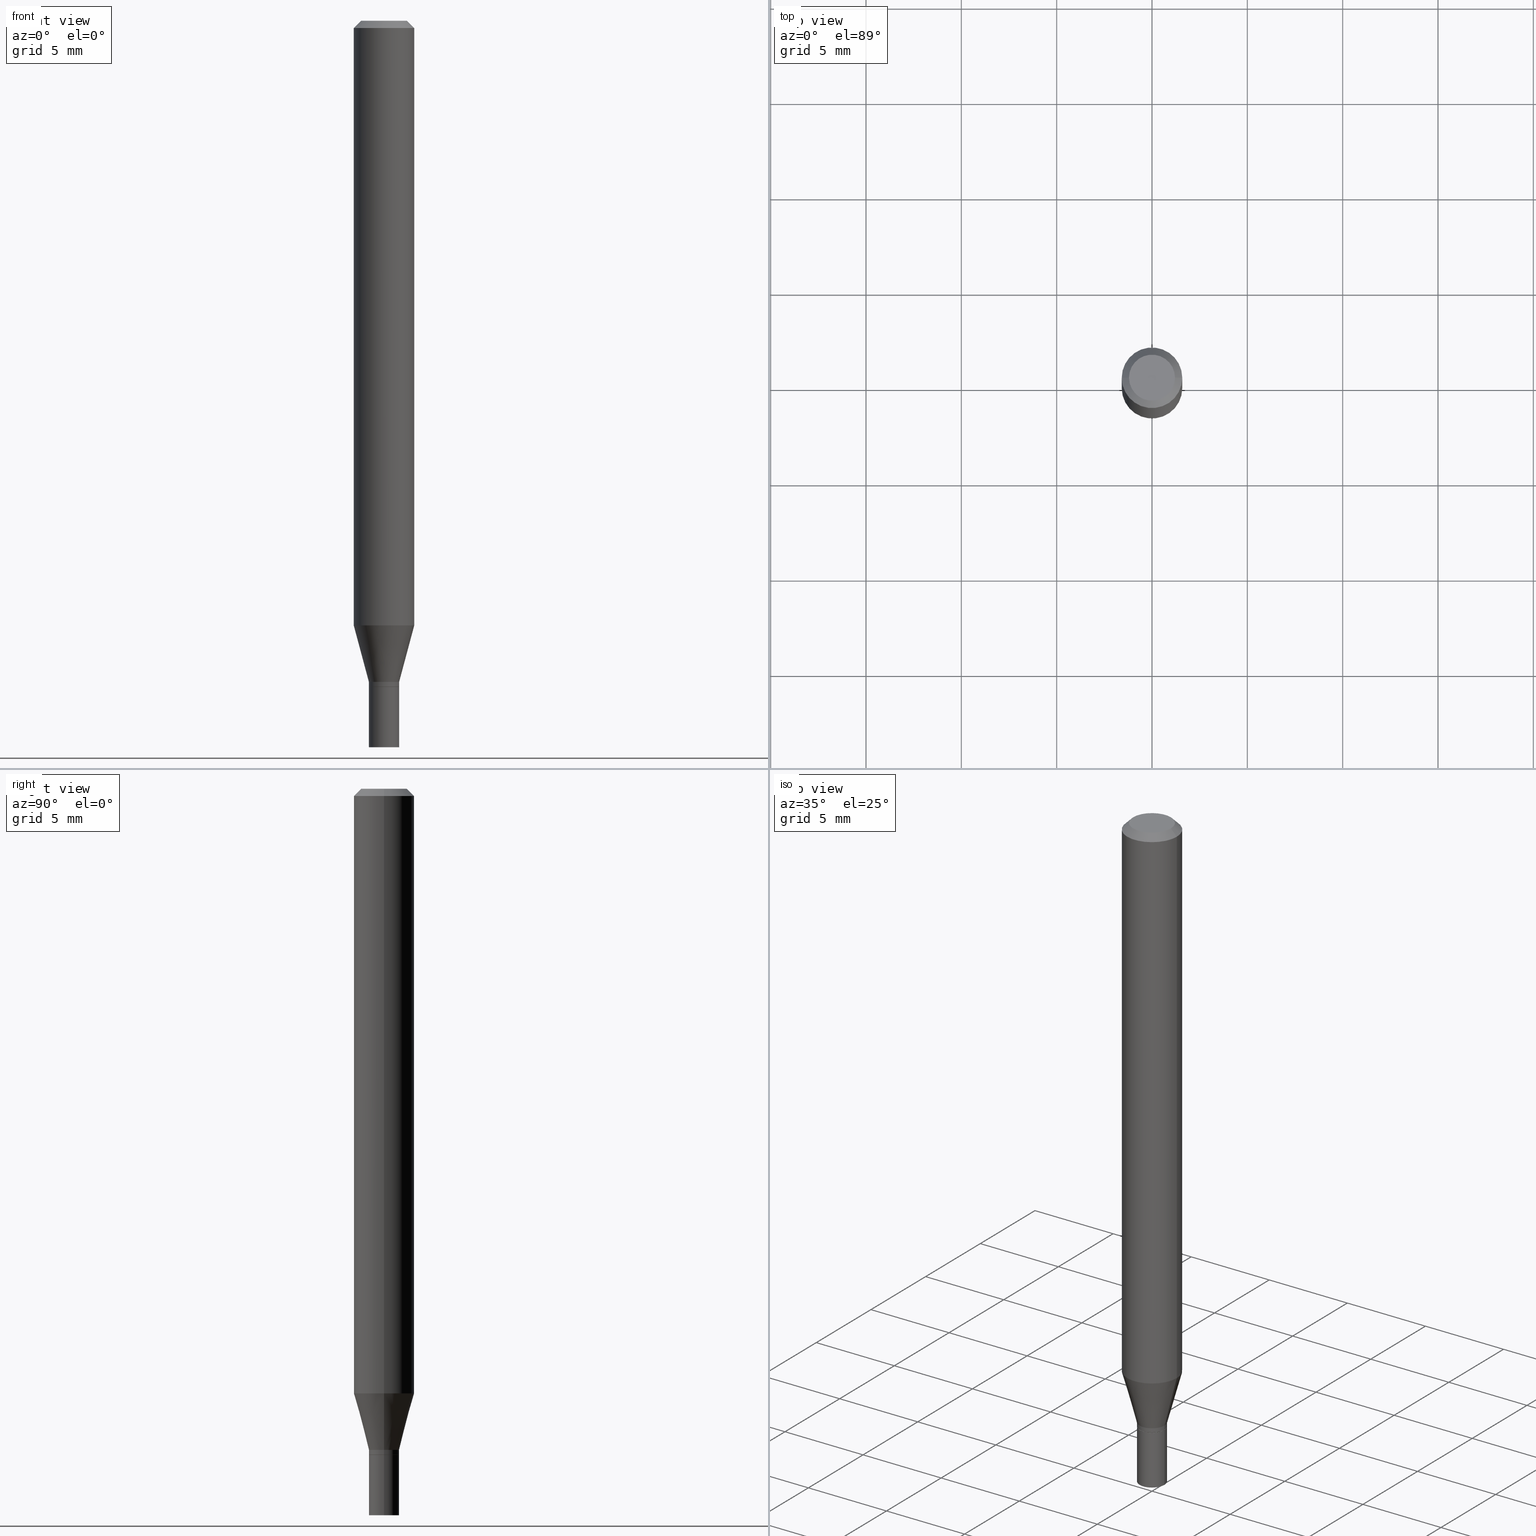
[diagram: canonical four-view strip — front | top / right | iso, engineering-drawing reading convention]
A machine part, canonical four-view strip (front | top / right | iso — engineering-drawing reading convention). The complete STEP part file that produces these views, byte-faithful:
ISO-10303-21;
HEADER;
FILE_DESCRIPTION (( 'STEP AP203' ),
    '1' );
FILE_NAME ('31303.STEP',
    '2024-03-13T16:30:00',
    ( '' ),
    ( '' ),
    'SwSTEP 2.0',
    'SolidWorks 2023',
    '' );
FILE_SCHEMA (( 'CONFIG_CONTROL_DESIGN' ));
ENDSEC;

DATA;
#1 = VECTOR ( 'NONE', #310, 39.37007874015748143 ) ;
#2 = VECTOR ( 'NONE', #418, 39.37007874015748143 ) ;
#3 = DIRECTION ( 'NONE',  ( 1.000000000000000000, -6.982962677686261189E-15, 0.000000000000000000 ) ) ;
#4 = ORIENTED_EDGE ( 'NONE', *, *, #189, .F. ) ;
#5 = CARTESIAN_POINT ( 'NONE',  ( -0.03125000000000000694, -4.796959819661991034E-15, -1.375000000000000000 ) ) ;
#6 = EDGE_LOOP ( 'NONE', ( #103, #231 ) ) ;
#7 = LINE ( 'NONE', #422, #416 ) ;
#8 = ORIENTED_EDGE ( 'NONE', *, *, #286, .F. ) ;
#9 = AXIS2_PLACEMENT_3D ( 'NONE', #161, #16, #341 ) ;
#10 = LINE ( 'NONE', #406, #307 ) ;
#11 = APPROVAL_ROLE ( '' ) ;
#12 = CARTESIAN_POINT ( 'NONE',  ( -0.03124999999999966693, -4.229205342785826785E-15, -1.364999999999999991 ) ) ;
#13 = DIRECTION ( 'NONE',  ( 1.000000000000000000, -6.982962677686275388E-15, 0.000000000000000000 ) ) ;
#14 = PERSON_AND_ORGANIZATION ( #39, #373 ) ;
#15 = ORIENTED_EDGE ( 'NONE', *, *, #102, .F. ) ;
#16 = DIRECTION ( 'NONE',  ( -2.445468806185136597E-29, 3.491481338843145583E-15, 1.000000000000000000 ) ) ;
#17 = ADVANCED_FACE ( 'NONE', ( #268 ), #450, .T. ) ;
#18 = DIRECTION ( 'NONE',  ( 1.000000000000000000, -6.982962677686267499E-15, 4.876176775795935793E-29 ) ) ;
#19 = DIRECTION ( 'NONE',  ( -2.445468806185136597E-29, 3.491481338843145583E-15, 1.000000000000000000 ) ) ;
#20 = ORIENTED_EDGE ( 'NONE', *, *, #183, .F. ) ;
#21 = CARTESIAN_POINT ( 'NONE',  ( 3.362519608504562260E-29, -4.800786840909324930E-15, -1.375000000000000000 ) ) ;
#22 =( CONVERSION_BASED_UNIT ( 'INCH', #306 ) LENGTH_UNIT ( ) NAMED_UNIT ( #182 ) );
#23 = EDGE_CURVE ( 'NONE', #151, #190, #66, .T. ) ;
#24 = CARTESIAN_POINT ( 'NONE',  ( 0.03124999999999966693, -4.984089611198587537E-15, -1.364999999999999991 ) ) ;
#25 = AXIS2_PLACEMENT_3D ( 'NONE', #304, #372, #55 ) ;
#26 = APPROVAL_PERSON_ORGANIZATION ( #113, #238, #354 ) ;
#27 = EDGE_CURVE ( 'NONE', #444, #396, #99, .T. ) ;
#28 = EDGE_CURVE ( 'NONE', #223, #143, #10, .T. ) ;
#29 = CARTESIAN_POINT ( 'NONE',  ( 5.895992206697910099E-45, -8.417914271318620386E-31, -2.410986470890828574E-16 ) ) ;
#30 = FACE_OUTER_BOUND ( 'NONE', #216, .T. ) ;
#31 = AXIS2_PLACEMENT_3D ( 'NONE', #165, #455, #205 ) ;
#32 = DIRECTION ( 'NONE',  ( -0.2588190451025215166, 5.211531920934551042E-15, 0.9659258262890679791 ) ) ;
#33 = CC_DESIGN_SECURITY_CLASSIFICATION ( #347, ( #293 ) ) ;
#34 = DIRECTION ( 'NONE',  ( 1.000000000000000000, -6.982962677686267499E-15, 4.876176775795935232E-29 ) ) ;
#35 = ORIENTED_EDGE ( 'NONE', *, *, #166, .F. ) ;
#36 = EDGE_CURVE ( 'NONE', #49, #143, #144, .T. ) ;
#37 = DIRECTION ( 'NONE',  ( -2.445468806185136597E-29, 3.491481338843145583E-15, 1.000000000000000000 ) ) ;
#38 = DIRECTION ( 'NONE',  ( -2.445468806185136597E-29, 3.491481338843145583E-15, 1.000000000000000000 ) ) ;
#39 = PERSON ( 'UNSPECIFIED', 'UNSPECIFIED', 'UNSPECIFIED', ('UNSPECIFIED'), ('UNSPECIFIED'), ('UNSPECIFIED') ) ;
#40 = ORIENTED_EDGE ( 'NONE', *, *, #220, .T. ) ;
#41 = CARTESIAN_POINT ( 'NONE',  ( 3.052858238161217332E-29, -4.358672472825852637E-15, -1.248373412263471760 ) ) ;
#42 = CIRCLE ( 'NONE', #133, 0.04749999999999999362 ) ;
#43 = ADVANCED_FACE ( 'NONE', ( #154 ), #92, .T. ) ;
#44 = ADVANCED_FACE ( 'NONE', ( #119 ), #409, .T. ) ;
#45 = ORIENTED_EDGE ( 'NONE', *, *, #162, .T. ) ;
#46 = EDGE_CURVE ( 'NONE', #148, #359, #420, .T. ) ;
#47 = DIRECTION ( 'NONE',  ( -2.445468806185136597E-29, 3.491481338843145583E-15, 1.000000000000000000 ) ) ;
#48 = COORDINATED_UNIVERSAL_TIME_OFFSET ( 5, 0, .BEHIND. ) ;
#49 = VERTEX_POINT ( 'NONE', #12 ) ;
#50 = CC_DESIGN_PERSON_AND_ORGANIZATION_ASSIGNMENT ( #215, #320, ( #293 ) ) ;
#51 = CARTESIAN_POINT ( 'NONE',  ( 3.338064920442711836E-29, -4.765872027520893280E-15, -1.364999999999999991 ) ) ;
#52 = VECTOR ( 'NONE', #345, 39.37007874015748143 ) ;
#53 = AXIS2_PLACEMENT_3D ( 'NONE', #355, #37, #464 ) ;
#54 = FACE_OUTER_BOUND ( 'NONE', #106, .T. ) ;
#55 = DIRECTION ( 'NONE',  ( 1.000000000000000000, -6.982962677686261189E-15, 0.000000000000000000 ) ) ;
#56 = DATE_AND_TIME ( #374, #208 ) ;
#57 = VERTEX_POINT ( 'NONE', #63 ) ;
#58 = LINE ( 'NONE', #264, #276 ) ;
#59 = CALENDAR_DATE ( 2024, 13, 3 ) ;
#60 = CARTESIAN_POINT ( 'NONE',  ( 3.362519608504562260E-29, -4.800786840909324930E-15, -1.375000000000000000 ) ) ;
#61 = DIRECTION ( 'NONE',  ( 2.438088387897960049E-29, -3.491481338843145188E-15, -1.000000000000000000 ) ) ;
#62 = VECTOR ( 'NONE', #313, 39.37007874015748143 ) ;
#63 = CARTESIAN_POINT ( 'NONE',  ( 0.06250000000000000000, -4.795107640181243517E-15, -1.248373412263471760 ) ) ;
#64 = PLANE ( 'NONE',  #391 ) ;
#65 = CARTESIAN_POINT ( 'NONE',  ( 3.668203209277705088E-31, -5.237222008264718399E-17, -0.01499999999999999944 ) ) ;
#66 = CIRCLE ( 'NONE', #122, 0.03075000000000000649 ) ;
#67 = CONICAL_SURFACE ( 'NONE', #176, 0.03124999999999966693, 0.2617993877991502405 ) ;
#68 = DIRECTION ( 'NONE',  ( 0.7071067811865656694, -2.468850131082446387E-15, 0.7071067811865294761 ) ) ;
#69 = CARTESIAN_POINT ( 'NONE',  ( 0.06250000000000000000, -4.364351673553916694E-16, 3.047610484872459871E-30 ) ) ;
#70 = DATE_AND_TIME ( #317, #80 ) ;
#71 = AXIS2_PLACEMENT_3D ( 'NONE', #241, #138, #423 ) ;
#72 = VECTOR ( 'NONE', #32, 39.37007874015748143 ) ;
#73 = APPROVAL_STATUS ( 'not_yet_approved' ) ;
#74 = ORIENTED_EDGE ( 'NONE', *, *, #36, .F. ) ;
#75 = DATE_TIME_ROLE ( 'creation_date' ) ;
#76 = ORIENTED_EDGE ( 'NONE', *, *, #234, .T. ) ;
#77 = DIRECTION ( 'NONE',  ( 1.000000000000000000, -6.982962677686270655E-15, 0.000000000000000000 ) ) ;
#78 = ORIENTED_EDGE ( 'NONE', *, *, #349, .F. ) ;
#79 = CONICAL_SURFACE ( 'NONE', #236, 0.06250000000000000000, 0.7853981633974563836 ) ;
#80 = LOCAL_TIME ( 12, 30, 0.000000000000000000, #403 ) ;
#81 = DIRECTION ( 'NONE',  ( -2.445468806185136877E-29, 3.491481338843145188E-15, 1.000000000000000000 ) ) ;
#82 = DIRECTION ( 'NONE',  ( -2.445468806185136597E-29, 3.491481338843145583E-15, 1.000000000000000000 ) ) ;
#83 = DIRECTION ( 'NONE',  ( -2.445468806185136597E-29, 3.491481338843145583E-15, 1.000000000000000000 ) ) ;
#84 = DIRECTION ( 'NONE',  ( -2.445468806185136597E-29, 3.491481338843145583E-15, 1.000000000000000000 ) ) ;
#85 = MECHANICAL_CONTEXT ( 'NONE', #125, 'mechanical' ) ;
#86 = UNCERTAINTY_MEASURE_WITH_UNIT (LENGTH_MEASURE( 1.000000000000000082E-05 ), #22, 'distance_accuracy_value', 'NONE');
#87 = AXIS2_PLACEMENT_3D ( 'NONE', #429, #344, #110 ) ;
#88 = EDGE_CURVE ( 'NONE', #143, #49, #263, .T. ) ;
#89 = AXIS2_PLACEMENT_3D ( 'NONE', #41, #179, #329 ) ;
#90 = CARTESIAN_POINT ( 'NONE',  ( -0.04749999999999999362, 3.578768372314206562E-16, -2.410986470890852239E-16 ) ) ;
#91 = ORIENTED_EDGE ( 'NONE', *, *, #88, .F. ) ;
#92 = CYLINDRICAL_SURFACE ( 'NONE', #433, 0.03124999999999979877 ) ;
#93 = EDGE_CURVE ( 'NONE', #57, #413, #383, .T. ) ;
#94 = DIRECTION ( 'NONE',  ( 1.000000000000000000, -6.982962677686275388E-15, 0.000000000000000000 ) ) ;
#95 = APPROVAL_ROLE ( '' ) ;
#96 = FACE_OUTER_BOUND ( 'NONE', #124, .T. ) ;
#97 =( LENGTH_UNIT ( ) NAMED_UNIT ( * ) SI_UNIT ( $, .METRE. ) );
#98 = DIRECTION ( 'NONE',  ( -2.445468806185136597E-29, 3.491481338843145583E-15, 1.000000000000000000 ) ) ;
#99 = CIRCLE ( 'NONE', #302, 0.03125000000000000694 ) ;
#100 = VECTOR ( 'NONE', #206, 39.37007874015748143 ) ;
#101 = DIRECTION ( 'NONE',  ( -0.7071067811865531239, 2.468850131082316225E-15, -0.7071067811865416886 ) ) ;
#102 = EDGE_CURVE ( 'NONE', #190, #283, #438, .T. ) ;
#103 = ORIENTED_EDGE ( 'NONE', *, *, #23, .F. ) ;
#104 = DIRECTION ( 'NONE',  ( 1.000000000000000000, -6.982962677686266711E-15, 0.000000000000000000 ) ) ;
#105 = DIRECTION ( 'NONE',  ( -2.445468806185136597E-29, 3.491481338843145583E-15, 1.000000000000000000 ) ) ;
#106 = EDGE_LOOP ( 'NONE', ( #120, #8, #337, #432 ) ) ;
#107 = CIRCLE ( 'NONE', #332, 0.04749999999999999362 ) ;
#108 = DIRECTION ( 'NONE',  ( 1.000000000000000000, -6.982962677686265922E-15, 4.876176775795935793E-29 ) ) ;
#109 = CARTESIAN_POINT ( 'NONE',  ( 3.362519608504562260E-29, -4.800786840909324930E-15, -1.375000000000000000 ) ) ;
#110 = DIRECTION ( 'NONE',  ( 1.000000000000000000, -6.982962677686274599E-15, 0.000000000000000000 ) ) ;
#111 = EDGE_LOOP ( 'NONE', ( #435, #76, #331, #214 ) ) ;
#112 = CARTESIAN_POINT ( 'NONE',  ( 3.362519608504562260E-29, -4.800786840909324930E-15, -1.375000000000000000 ) ) ;
#113 = PERSON_AND_ORGANIZATION ( #39, #373 ) ;
#114 = EDGE_LOOP ( 'NONE', ( #334, #174 ) ) ;
#115 = CIRCLE ( 'NONE', #410, 0.03075000000000000649 ) ;
#116 = CONICAL_SURFACE ( 'NONE', #146, 0.06250000000000000000, 0.7853981633974563836 ) ;
#117 = DIRECTION ( 'NONE',  ( -2.445468806185136597E-29, 3.491481338843145583E-15, 1.000000000000000000 ) ) ;
#118 = CARTESIAN_POINT ( 'NONE',  ( 0.000000000000000000, 0.000000000000000000, 0.000000000000000000 ) ) ;
#119 = FACE_OUTER_BOUND ( 'NONE', #111, .T. ) ;
#120 = ORIENTED_EDGE ( 'NONE', *, *, #442, .F. ) ;
#121 = CARTESIAN_POINT ( 'NONE',  ( 3.668203209277705088E-31, -5.237222008264718399E-17, -0.01499999999999999944 ) ) ;
#122 = AXIS2_PLACEMENT_3D ( 'NONE', #270, #297, #229 ) ;
#123 = ORIENTED_EDGE ( 'NONE', *, *, #183, .T. ) ;
#124 = EDGE_LOOP ( 'NONE', ( #15, #45, #40, #288 ) ) ;
#125 = APPLICATION_CONTEXT ( 'configuration controlled 3d designs of mechanical parts and assemblies' ) ;
#126 = APPROVAL ( #157, 'UNSPECIFIED' ) ;
#127 = CARTESIAN_POINT ( 'NONE',  ( 3.362519608504562260E-29, -4.800786840909324930E-15, -1.375000000000000000 ) ) ;
#128 = AXIS2_PLACEMENT_3D ( 'NONE', #408, #38, #3 ) ;
#129 = APPROVAL ( #424, 'UNSPECIFIED' ) ;
#130 = LINE ( 'NONE', #386, #2 ) ;
#131 = ADVANCED_FACE ( 'NONE', ( #96 ), #273, .T. ) ;
#132 = LINE ( 'NONE', #419, #457 ) ;
#133 = AXIS2_PLACEMENT_3D ( 'NONE', #29, #388, #456 ) ;
#134 = AXIS2_PLACEMENT_3D ( 'NONE', #112, #252, #407 ) ;
#135 = FACE_OUTER_BOUND ( 'NONE', #394, .T. ) ;
#136 = ADVANCED_FACE ( 'NONE', ( #305 ), #277, .T. ) ;
#137 = DIRECTION ( 'NONE',  ( -2.445468806185136597E-29, 3.491481338843145583E-15, 1.000000000000000000 ) ) ;
#138 = DIRECTION ( 'NONE',  ( 2.438088387897960049E-29, -3.491481338843145188E-15, -1.000000000000000000 ) ) ;
#139 = CARTESIAN_POINT ( 'NONE',  ( 0.03075000000000000649, -5.015512943248178546E-15, -1.375000000000000000 ) ) ;
#140 = EDGE_LOOP ( 'NONE', ( #404, #463 ) ) ;
#141 = CYLINDRICAL_SURFACE ( 'NONE', #265, 0.03125000000000000694 ) ;
#142 = CARTESIAN_POINT ( 'NONE',  ( 3.576687321579069994E-29, -5.368277968210015545E-15, -1.500000000000000222 ) ) ;
#143 = VERTEX_POINT ( 'NONE', #24 ) ;
#144 = CIRCLE ( 'NONE', #232, 0.03124999999999966693 ) ;
#145 = MANIFOLD_SOLID_BREP ( 'Body-Move/Copy2[1]', #346 ) ;
#146 = AXIS2_PLACEMENT_3D ( 'NONE', #371, #186, #333 ) ;
#147 = CC_DESIGN_PERSON_AND_ORGANIZATION_ASSIGNMENT ( #325, #431, ( #293 ) ) ;
#148 = VERTEX_POINT ( 'NONE', #454 ) ;
#149 = VERTEX_POINT ( 'NONE', #274 ) ;
#150 = DATE_AND_TIME ( #376, #163 ) ;
#151 = VERTEX_POINT ( 'NONE', #417 ) ;
#152 = AXIS2_PLACEMENT_3D ( 'NONE', #60, #117, #367 ) ;
#153 = CIRCLE ( 'NONE', #89, 0.06250000000000000000 ) ;
#154 = FACE_OUTER_BOUND ( 'NONE', #246, .T. ) ;
#155 = DIRECTION ( 'NONE',  ( -1.000000000000000000, 6.982962677686265922E-15, -4.876176775795935793E-29 ) ) ;
#156 = EDGE_LOOP ( 'NONE', ( #364, #123, #35, #377 ) ) ;
#157 = APPROVAL_STATUS ( 'not_yet_approved' ) ;
#158 = ORIENTED_EDGE ( 'NONE', *, *, #166, .T. ) ;
#159 = CC_DESIGN_APPROVAL ( #129, ( #347 ) ) ;
#160 = EDGE_LOOP ( 'NONE', ( #328, #452, #210, #321 ) ) ;
#161 = CARTESIAN_POINT ( 'NONE',  ( 3.338064920442711836E-29, -4.765872027520893280E-15, -1.364999999999999991 ) ) ;
#162 = EDGE_CURVE ( 'NONE', #190, #151, #115, .T. ) ;
#163 = LOCAL_TIME ( 12, 30, 0.000000000000000000, #48 ) ;
#164 = CARTESIAN_POINT ( 'NONE',  ( -0.03124999999999966693, -4.543827422595864339E-15, -1.364999999999999991 ) ) ;
#165 = CARTESIAN_POINT ( 'NONE',  ( 0.000000000000000000, 0.000000000000000000, 0.000000000000000000 ) ) ;
#166 = EDGE_CURVE ( 'NONE', #149, #437, #339, .T. ) ;
#167 = ADVANCED_FACE ( 'NONE', ( #453 ), #79, .T. ) ;
#168 = EDGE_CURVE ( 'NONE', #283, #49, #58, .T. ) ;
#169 = AXIS2_PLACEMENT_3D ( 'NONE', #121, #98, #235 ) ;
#170 = APPROVAL_PERSON_ORGANIZATION ( #281, #129, #11 ) ;
#171 = CYLINDRICAL_SURFACE ( 'NONE', #31, 0.06250000000000000000 ) ;
#172 = DIRECTION ( 'NONE',  ( 1.000000000000000000, -6.982962677686261189E-15, 0.000000000000000000 ) ) ;
#173 = ORIENTED_EDGE ( 'NONE', *, *, #36, .T. ) ;
#174 = ORIENTED_EDGE ( 'NONE', *, *, #46, .F. ) ;
#175 = VERTEX_POINT ( 'NONE', #90 ) ;
#176 = AXIS2_PLACEMENT_3D ( 'NONE', #314, #137, #279 ) ;
#177 = SECURITY_CLASSIFICATION_LEVEL ( 'unclassified' ) ;
#178 = EDGE_LOOP ( 'NONE', ( #227, #249, #255, #284 ) ) ;
#179 = DIRECTION ( 'NONE',  ( -2.445468806185136597E-29, 3.491481338843145583E-15, 1.000000000000000000 ) ) ;
#180 = DIRECTION ( 'NONE',  ( 1.000000000000000000, -6.982962677686278543E-15, 0.000000000000000000 ) ) ;
#181 = CARTESIAN_POINT ( 'NONE',  ( -0.03075000000000000649, -4.582294949663094520E-15, -1.375000000000000000 ) ) ;
#182 = DIMENSIONAL_EXPONENTS ( 1.000000000000000000, 0.000000000000000000, 0.000000000000000000, 0.000000000000000000, 0.000000000000000000, 0.000000000000000000, 0.000000000000000000 ) ;
#183 = EDGE_CURVE ( 'NONE', #413, #437, #378, .T. ) ;
#184 = DIRECTION ( 'NONE',  ( -2.445468806185136597E-29, 3.491481338843145583E-15, 1.000000000000000000 ) ) ;
#185 = AXIS2_PLACEMENT_3D ( 'NONE', #142, #434, #108 ) ;
#186 = DIRECTION ( 'NONE',  ( 2.445468806185136597E-29, -3.491481338843145583E-15, -1.000000000000000000 ) ) ;
#187 = ORIENTED_EDGE ( 'NONE', *, *, #299, .F. ) ;
#188 = ADVANCED_BREP_SHAPE_REPRESENTATION ( '31303', ( #145, #461, #224 ), #201 ) ;
#189 = EDGE_CURVE ( 'NONE', #323, #175, #42, .T. ) ;
#190 = VERTEX_POINT ( 'NONE', #384 ) ;
#191 = ADVANCED_FACE ( 'NONE', ( #312 ), #171, .T. ) ;
#192 = DIRECTION ( 'NONE',  ( -2.445468806185136597E-29, 3.491481338843145583E-15, 1.000000000000000000 ) ) ;
#193 = CARTESIAN_POINT ( 'NONE',  ( 0.000000000000000000, 0.000000000000000000, 0.000000000000000000 ) ) ;
#194 = DIRECTION ( 'NONE',  ( 1.000000000000000000, -6.982962677686274599E-15, 0.000000000000000000 ) ) ;
#195 = PERSON_AND_ORGANIZATION_ROLE ( 'design_owner' ) ;
#196 = CIRCLE ( 'NONE', #217, 0.06250000000000000000 ) ;
#197 = ORIENTED_EDGE ( 'NONE', *, *, #271, .T. ) ;
#198 = CARTESIAN_POINT ( 'NONE',  ( 2.182175836777295092E-16, 0.03124999999999520522, -1.375000000000000000 ) ) ;
#199 = VECTOR ( 'NONE', #237, 39.37007874015748143 ) ;
#200 = APPLICATION_CONTEXT ( 'configuration controlled 3d designs of mechanical parts and assemblies' ) ;
#201 =( GEOMETRIC_REPRESENTATION_CONTEXT ( 3 ) GLOBAL_UNCERTAINTY_ASSIGNED_CONTEXT ( ( #86 ) ) GLOBAL_UNIT_ASSIGNED_CONTEXT ( ( #22, #414, #300 ) ) REPRESENTATION_CONTEXT ( 'NONE', 'WORKASPACE' ) );
#202 = EDGE_CURVE ( 'NONE', #175, #437, #132, .T. ) ;
#203 = LINE ( 'NONE', #348, #62 ) ;
#204 = PRODUCT_DEFINITION_SHAPE ( 'NONE', 'NONE',  #458 ) ;
#205 = DIRECTION ( 'NONE',  ( 1.000000000000000000, -6.982962677686266711E-15, 4.876176775795935793E-29 ) ) ;
#206 = DIRECTION ( 'NONE',  ( -2.445468806185136877E-29, 3.491481338843145188E-15, 1.000000000000000000 ) ) ;
#207 = CARTESIAN_POINT ( 'NONE',  ( 0.03125000000000000694, -5.019004424587020764E-15, -1.375000000000000000 ) ) ;
#208 = LOCAL_TIME ( 12, 30, 0.000000000000000000, #225 ) ;
#209 = ORIENTED_EDGE ( 'NONE', *, *, #212, .T. ) ;
#210 = ORIENTED_EDGE ( 'NONE', *, *, #309, .T. ) ;
#211 = FACE_OUTER_BOUND ( 'NONE', #338, .T. ) ;
#212 = EDGE_CURVE ( 'NONE', #143, #57, #462, .T. ) ;
#213 = CARTESIAN_POINT ( 'NONE',  ( 5.895992206697910099E-45, -8.417914271318620386E-31, -2.410986470890828574E-16 ) ) ;
#214 = ORIENTED_EDGE ( 'NONE', *, *, #309, .F. ) ;
#215 = PERSON_AND_ORGANIZATION ( #39, #373 ) ;
#216 = EDGE_LOOP ( 'NONE', ( #301, #318, #451, #448 ) ) ;
#217 = AXIS2_PLACEMENT_3D ( 'NONE', #282, #426, #104 ) ;
#218 = DIRECTION ( 'NONE',  ( -2.445468806185136597E-29, 3.491481338843145583E-15, 1.000000000000000000 ) ) ;
#219 = EDGE_LOOP ( 'NONE', ( #197, #291, #91, #326 ) ) ;
#220 = EDGE_CURVE ( 'NONE', #151, #223, #385, .T. ) ;
#221 = ORIENTED_EDGE ( 'NONE', *, *, #286, .T. ) ;
#222 = DIRECTION ( 'NONE',  ( 1.000000000000000000, -6.982962677686267499E-15, 4.852736867747366768E-29 ) ) ;
#223 = VERTEX_POINT ( 'NONE', #280 ) ;
#224 = AXIS2_PLACEMENT_3D ( 'NONE', #193, #303, #269 ) ;
#225 = COORDINATED_UNIVERSAL_TIME_OFFSET ( 5, 0, .BEHIND. ) ;
#226 = SHAPE_DEFINITION_REPRESENTATION ( #204, #188 ) ;
#227 = ORIENTED_EDGE ( 'NONE', *, *, #23, .T. ) ;
#228 = DIRECTION ( 'NONE',  ( 2.445468806185136597E-29, -3.491481338843145583E-15, -1.000000000000000000 ) ) ;
#229 = DIRECTION ( 'NONE',  ( 1.000000000000000000, -6.982962677686275388E-15, 0.000000000000000000 ) ) ;
#230 = PERSON_AND_ORGANIZATION ( #39, #373 ) ;
#231 = ORIENTED_EDGE ( 'NONE', *, *, #162, .F. ) ;
#232 = AXIS2_PLACEMENT_3D ( 'NONE', #51, #184, #194 ) ;
#233 = LOCAL_TIME ( 12, 30, 0.000000000000000000, #412 ) ;
#234 = EDGE_CURVE ( 'NONE', #148, #396, #203, .T. ) ;
#235 = DIRECTION ( 'NONE',  ( 1.000000000000000000, -6.982962677686266711E-15, 0.000000000000000000 ) ) ;
#236 = AXIS2_PLACEMENT_3D ( 'NONE', #65, #228, #298 ) ;
#237 = DIRECTION ( 'NONE',  ( 0.2588190451025215166, 1.565188264969620784E-15, 0.9659258262890679791 ) ) ;
#238 = APPROVAL ( #73, 'UNSPECIFIED' ) ;
#239 = CC_DESIGN_PERSON_AND_ORGANIZATION_ASSIGNMENT ( #230, #195, ( #311 ) ) ;
#240 = DIRECTION ( 'NONE',  ( 0.7071067811865531239, -7.319954787623273400E-15, -0.7071067811865416886 ) ) ;
#241 = CARTESIAN_POINT ( 'NONE',  ( 3.316907271900976096E-16, 0.04749999999999999362, -2.863946871395908498E-16 ) ) ;
#242 = ORIENTED_EDGE ( 'NONE', *, *, #335, .F. ) ;
#243 = PRODUCT_RELATED_PRODUCT_CATEGORY ( 'detail', '', ( #311 ) ) ;
#244 = CIRCLE ( 'NONE', #390, 0.03124999999999993061 ) ;
#245 = APPROVAL_PERSON_ORGANIZATION ( #266, #126, #95 ) ;
#246 = EDGE_LOOP ( 'NONE', ( #250, #292, #398, #74 ) ) ;
#247 = LINE ( 'NONE', #164, #72 ) ;
#248 = CARTESIAN_POINT ( 'NONE',  ( -0.03124999999999993061, -4.576996495314873696E-15, -1.374500000000000055 ) ) ;
#249 = ORIENTED_EDGE ( 'NONE', *, *, #102, .T. ) ;
#250 = ORIENTED_EDGE ( 'NONE', *, *, #168, .F. ) ;
#251 = ADVANCED_FACE ( 'NONE', ( #135 ), #278, .F. ) ;
#252 = DIRECTION ( 'NONE',  ( -2.438088387897960049E-29, 3.491481338843145188E-15, 1.000000000000000000 ) ) ;
#253 = VECTOR ( 'NONE', #68, 39.37007874015748143 ) ;
#254 = DIRECTION ( 'NONE',  ( -2.445468806185136597E-29, 3.491481338843145583E-15, 1.000000000000000000 ) ) ;
#255 = ORIENTED_EDGE ( 'NONE', *, *, #271, .F. ) ;
#256 = LOCAL_TIME ( 12, 30, 0.000000000000000000, #358 ) ;
#257 = DIRECTION ( 'NONE',  ( -2.445468806185136597E-29, 3.491481338843145583E-15, 1.000000000000000000 ) ) ;
#258 = CC_DESIGN_DATE_AND_TIME_ASSIGNMENT ( #315, #75, ( #458 ) ) ;
#259 = FACE_OUTER_BOUND ( 'NONE', #219, .T. ) ;
#260 = APPROVAL_DATE_TIME ( #150, #129 ) ;
#261 = CARTESIAN_POINT ( 'NONE',  ( 0.000000000000000000, 0.000000000000000000, 0.000000000000000000 ) ) ;
#262 = EDGE_LOOP ( 'NONE', ( #4, #356, #158, #343 ) ) ;
#263 = CIRCLE ( 'NONE', #87, 0.03124999999999966693 ) ;
#264 = CARTESIAN_POINT ( 'NONE',  ( -0.03124999999999979877, 2.220446049250298783E-16, -1.537167215704648248E-30 ) ) ;
#265 = AXIS2_PLACEMENT_3D ( 'NONE', #397, #285, #436 ) ;
#266 = PERSON_AND_ORGANIZATION ( #39, #373 ) ;
#267 = EDGE_CURVE ( 'NONE', #359, #148, #330, .T. ) ;
#268 = FACE_OUTER_BOUND ( 'NONE', #178, .T. ) ;
#269 = DIRECTION ( 'NONE',  ( 1.000000000000000000, 0.000000000000000000, 0.000000000000000000 ) ) ;
#270 = CARTESIAN_POINT ( 'NONE',  ( 3.362519608504562260E-29, -4.800786840909324930E-15, -1.375000000000000000 ) ) ;
#271 = EDGE_CURVE ( 'NONE', #223, #283, #244, .T. ) ;
#272 = APPLICATION_PROTOCOL_DEFINITION ( 'international standard', 'config_control_design', 1994, #125 ) ;
#273 = CONICAL_SURFACE ( 'NONE', #361, 0.03075000000000000649, 0.7853981633974739252 ) ;
#274 = CARTESIAN_POINT ( 'NONE',  ( 0.06250000000000000000, -4.888073874380388472E-16, -0.01499999999999999944 ) ) ;
#275 = ADVANCED_FACE ( 'NONE', ( #465 ), #402, .F. ) ;
#276 = VECTOR ( 'NONE', #411, 39.37007874015748143 ) ;
#277 = CONICAL_SURFACE ( 'NONE', #9, 0.03124999999999966693, 0.2617993877991502405 ) ;
#278 = PLANE ( 'NONE',  #71 ) ;
#279 = DIRECTION ( 'NONE',  ( 1.000000000000000000, -6.982962677686274599E-15, 0.000000000000000000 ) ) ;
#280 = CARTESIAN_POINT ( 'NONE',  ( 0.03124999999999993061, -5.017258683917599261E-15, -1.374500000000000055 ) ) ;
#281 = PERSON_AND_ORGANIZATION ( #39, #373 ) ;
#282 = CARTESIAN_POINT ( 'NONE',  ( 3.668203209277705088E-31, -5.237222008264718399E-17, -0.01499999999999999944 ) ) ;
#283 = VERTEX_POINT ( 'NONE', #248 ) ;
#284 = ORIENTED_EDGE ( 'NONE', *, *, #220, .F. ) ;
#285 = DIRECTION ( 'NONE',  ( -2.445468806185136597E-29, 3.491481338843145583E-15, 1.000000000000000000 ) ) ;
#286 = EDGE_CURVE ( 'NONE', #175, #323, #107, .T. ) ;
#287 = APPROVAL_DATE_TIME ( #70, #238 ) ;
#288 = ORIENTED_EDGE ( 'NONE', *, *, #405, .F. ) ;
#289 = ADVANCED_FACE ( 'NONE', ( #54 ), #116, .T. ) ;
#290 = DATE_AND_TIME ( #363, #256 ) ;
#291 = ORIENTED_EDGE ( 'NONE', *, *, #168, .T. ) ;
#292 = ORIENTED_EDGE ( 'NONE', *, *, #405, .T. ) ;
#293 = PRODUCT_DEFINITION_FORMATION_WITH_SPECIFIED_SOURCE ( 'ANY', '', #311, .NOT_KNOWN. ) ;
#294 = CARTESIAN_POINT ( 'NONE',  ( 0.03125000000000000694, -5.455439591942414011E-15, -1.500000000000000222 ) ) ;
#295 = CARTESIAN_POINT ( 'NONE',  ( 0.000000000000000000, 0.000000000000000000, 0.000000000000000000 ) ) ;
#296 = CC_DESIGN_DATE_AND_TIME_ASSIGNMENT ( #290, #459, ( #347 ) ) ;
#297 = DIRECTION ( 'NONE',  ( -2.445468806185136597E-29, 3.491481338843145583E-15, 1.000000000000000000 ) ) ;
#298 = DIRECTION ( 'NONE',  ( -1.000000000000000000, 6.982962677686266711E-15, 0.000000000000000000 ) ) ;
#299 = EDGE_CURVE ( 'NONE', #49, #413, #247, .T. ) ;
#300 =( NAMED_UNIT ( * ) SI_UNIT ( $, .STERADIAN. ) SOLID_ANGLE_UNIT ( ) );
#301 = ORIENTED_EDGE ( 'NONE', *, *, #88, .T. ) ;
#302 = AXIS2_PLACEMENT_3D ( 'NONE', #415, #257, #380 ) ;
#303 = DIRECTION ( 'NONE',  ( 0.000000000000000000, 0.000000000000000000, 1.000000000000000000 ) ) ;
#304 = CARTESIAN_POINT ( 'NONE',  ( 3.668203209277704895E-29, -5.237222008264718177E-15, -1.500000000000000222 ) ) ;
#305 = FACE_OUTER_BOUND ( 'NONE', #389, .T. ) ;
#306 = LENGTH_MEASURE_WITH_UNIT ( LENGTH_MEASURE( 0.02539999999999999897 ), #97 );
#307 = VECTOR ( 'NONE', #81, 39.37007874015748143 ) ;
#308 = AXIS2_PLACEMENT_3D ( 'NONE', #109, #218, #172 ) ;
#309 = EDGE_CURVE ( 'NONE', #359, #444, #130, .T. ) ;
#310 = DIRECTION ( 'NONE',  ( -2.445468806185136877E-29, 3.491481338843145188E-15, 1.000000000000000000 ) ) ;
#311 = PRODUCT ( '31303', '31303', '', ( #85 ) ) ;
#312 = FACE_OUTER_BOUND ( 'NONE', #156, .T. ) ;
#313 = DIRECTION ( 'NONE',  ( -2.445468806185136877E-29, 3.491481338843145188E-15, 1.000000000000000000 ) ) ;
#314 = CARTESIAN_POINT ( 'NONE',  ( 3.338064920442711836E-29, -4.765872027520893280E-15, -1.364999999999999991 ) ) ;
#315 = DATE_AND_TIME ( #59, #233 ) ;
#316 = ADVANCED_FACE ( 'NONE', ( #30 ), #67, .T. ) ;
#317 = CALENDAR_DATE ( 2024, 13, 3 ) ;
#318 = ORIENTED_EDGE ( 'NONE', *, *, #299, .T. ) ;
#319 = DIRECTION ( 'NONE',  ( 1.000000000000000000, -6.982962677686278543E-15, 0.000000000000000000 ) ) ;
#320 = PERSON_AND_ORGANIZATION_ROLE ( 'creator' ) ;
#321 = ORIENTED_EDGE ( 'NONE', *, *, #381, .F. ) ;
#322 = AXIS2_PLACEMENT_3D ( 'NONE', #118, #82, #34 ) ;
#323 = VERTEX_POINT ( 'NONE', #421 ) ;
#324 = EDGE_CURVE ( 'NONE', #57, #149, #460, .T. ) ;
#325 = PERSON_AND_ORGANIZATION ( #39, #373 ) ;
#326 = ORIENTED_EDGE ( 'NONE', *, *, #28, .F. ) ;
#327 = CARTESIAN_POINT ( 'NONE',  ( -0.06250000000000000000, -3.914583262975789231E-15, -1.248373412263471760 ) ) ;
#328 = ORIENTED_EDGE ( 'NONE', *, *, #234, .F. ) ;
#329 = DIRECTION ( 'NONE',  ( 1.000000000000000000, -6.982962677686270655E-15, 0.000000000000000000 ) ) ;
#330 = CIRCLE ( 'NONE', #128, 0.03125000000000000694 ) ;
#331 = ORIENTED_EDGE ( 'NONE', *, *, #27, .F. ) ;
#332 = AXIS2_PLACEMENT_3D ( 'NONE', #213, #83, #222 ) ;
#333 = DIRECTION ( 'NONE',  ( -1.000000000000000000, 6.982962677686266711E-15, 0.000000000000000000 ) ) ;
#334 = ORIENTED_EDGE ( 'NONE', *, *, #267, .F. ) ;
#335 = EDGE_CURVE ( 'NONE', #437, #149, #196, .T. ) ;
#336 = APPROVAL_DATE_TIME ( #56, #126 ) ;
#337 = ORIENTED_EDGE ( 'NONE', *, *, #202, .T. ) ;
#338 = EDGE_LOOP ( 'NONE', ( #20, #441, #425, #242 ) ) ;
#339 = CIRCLE ( 'NONE', #169, 0.06250000000000000000 ) ;
#340 = AXIS2_PLACEMENT_3D ( 'NONE', #399, #47, #180 ) ;
#341 = DIRECTION ( 'NONE',  ( 1.000000000000000000, -6.982962677686274599E-15, 0.000000000000000000 ) ) ;
#342 = CC_DESIGN_APPROVAL ( #238, ( #293 ) ) ;
#343 = ORIENTED_EDGE ( 'NONE', *, *, #202, .F. ) ;
#344 = DIRECTION ( 'NONE',  ( -2.445468806185136597E-29, 3.491481338843145583E-15, 1.000000000000000000 ) ) ;
#345 = DIRECTION ( 'NONE',  ( -0.7071067811865656694, 7.493145998870420424E-15, 0.7071067811865294761 ) ) ;
#346 = CLOSED_SHELL ( 'NONE', ( #44, #275, #368, #447 ) ) ;
#347 = SECURITY_CLASSIFICATION ( '', '', #177 ) ;
#348 = CARTESIAN_POINT ( 'NONE',  ( -0.03125000000000000694, 2.220446049250313574E-16, -1.537167215704658582E-30 ) ) ;
#349 = EDGE_CURVE ( 'NONE', #413, #57, #153, .T. ) ;
#350 = ADVANCED_FACE ( 'NONE', ( #211 ), #430, .T. ) ;
#351 = PERSON_AND_ORGANIZATION_ROLE ( 'classification_officer' ) ;
#352 = FACE_OUTER_BOUND ( 'NONE', #140, .T. ) ;
#353 = CARTESIAN_POINT ( 'NONE',  ( 0.03124999999999966693, -4.984089611198587537E-15, -1.364999999999999991 ) ) ;
#354 = APPROVAL_ROLE ( '' ) ;
#355 = CARTESIAN_POINT ( 'NONE',  ( 0.000000000000000000, 0.000000000000000000, 0.000000000000000000 ) ) ;
#356 = ORIENTED_EDGE ( 'NONE', *, *, #442, .T. ) ;
#357 = ADVANCED_FACE ( 'NONE', ( #395 ), #439, .F. ) ;
#358 = COORDINATED_UNIVERSAL_TIME_OFFSET ( 5, 0, .BEHIND. ) ;
#359 = VERTEX_POINT ( 'NONE', #294 ) ;
#360 = CC_DESIGN_PERSON_AND_ORGANIZATION_ASSIGNMENT ( #466, #351, ( #347 ) ) ;
#361 = AXIS2_PLACEMENT_3D ( 'NONE', #21, #192, #13 ) ;
#362 = CC_DESIGN_APPROVAL ( #126, ( #458 ) ) ;
#363 = CALENDAR_DATE ( 2024, 13, 3 ) ;
#364 = ORIENTED_EDGE ( 'NONE', *, *, #93, .T. ) ;
#365 = ORIENTED_EDGE ( 'NONE', *, *, #189, .T. ) ;
#366 = ADVANCED_FACE ( 'NONE', ( #259 ), #445, .T. ) ;
#367 = DIRECTION ( 'NONE',  ( 1.000000000000000000, -6.982962677686275388E-15, 0.000000000000000000 ) ) ;
#368 = ADVANCED_FACE ( 'NONE', ( #392 ), #141, .T. ) ;
#369 = CLOSED_SHELL ( 'NONE', ( #366, #17, #167, #191, #316, #136, #350, #289, #251, #357, #131, #43 ) ) ;
#370 = AXIS2_PLACEMENT_3D ( 'NONE', #261, #84, #18 ) ;
#371 = CARTESIAN_POINT ( 'NONE',  ( 3.668203209277705088E-31, -5.237222008264718399E-17, -0.01499999999999999944 ) ) ;
#372 = DIRECTION ( 'NONE',  ( -2.445468806185136597E-29, 3.491481338843145583E-15, 1.000000000000000000 ) ) ;
#373 = ORGANIZATION ( 'UNSPECIFIED', 'UNSPECIFIED', '' ) ;
#374 = CALENDAR_DATE ( 2024, 13, 3 ) ;
#375 = DESIGN_CONTEXT ( 'detailed design', #200, 'design' ) ;
#376 = CALENDAR_DATE ( 2024, 13, 3 ) ;
#377 = ORIENTED_EDGE ( 'NONE', *, *, #324, .F. ) ;
#378 = LINE ( 'NONE', #393, #1 ) ;
#379 = APPLICATION_PROTOCOL_DEFINITION ( 'international standard', 'config_control_design', 1994, #200 ) ;
#380 = DIRECTION ( 'NONE',  ( 1.000000000000000000, -6.982962677686261189E-15, 0.000000000000000000 ) ) ;
#381 = EDGE_CURVE ( 'NONE', #396, #444, #401, .T. ) ;
#382 = DIRECTION ( 'NONE',  ( 1.000000000000000000, -6.982962677686267499E-15, 4.876176775795935232E-29 ) ) ;
#383 = CIRCLE ( 'NONE', #400, 0.06250000000000000000 ) ;
#384 = CARTESIAN_POINT ( 'NONE',  ( -0.03075000000000000649, -4.579645722488984108E-15, -1.375000000000000000 ) ) ;
#385 = LINE ( 'NONE', #139, #253 ) ;
#386 = CARTESIAN_POINT ( 'NONE',  ( 0.03125000000000000694, -2.182175836776959087E-16, 1.523805242436230286E-30 ) ) ;
#387 = CARTESIAN_POINT ( 'NONE',  ( -0.06250000000000000000, -1.761433136604187439E-15, -0.01499999999999999944 ) ) ;
#388 = DIRECTION ( 'NONE',  ( -2.445468806185136597E-29, 3.491481338843145583E-15, 1.000000000000000000 ) ) ;
#389 = EDGE_LOOP ( 'NONE', ( #187, #173, #209, #78 ) ) ;
#390 = AXIS2_PLACEMENT_3D ( 'NONE', #440, #254, #319 ) ;
#391 = AXIS2_PLACEMENT_3D ( 'NONE', #198, #61, #155 ) ;
#392 = FACE_OUTER_BOUND ( 'NONE', #160, .T. ) ;
#393 = CARTESIAN_POINT ( 'NONE',  ( -0.06250000000000000000, 4.440892098500626162E-16, -3.074334431409316114E-30 ) ) ;
#394 = EDGE_LOOP ( 'NONE', ( #221, #365 ) ) ;
#395 = FACE_OUTER_BOUND ( 'NONE', #6, .T. ) ;
#396 = VERTEX_POINT ( 'NONE', #5 ) ;
#397 = CARTESIAN_POINT ( 'NONE',  ( 0.000000000000000000, 0.000000000000000000, 0.000000000000000000 ) ) ;
#398 = ORIENTED_EDGE ( 'NONE', *, *, #28, .T. ) ;
#399 = CARTESIAN_POINT ( 'NONE',  ( 3.361296874101470580E-29, -4.799041100239904215E-15, -1.374500000000000055 ) ) ;
#400 = AXIS2_PLACEMENT_3D ( 'NONE', #428, #105, #77 ) ;
#401 = CIRCLE ( 'NONE', #308, 0.03125000000000000694 ) ;
#402 = PLANE ( 'NONE',  #185 ) ;
#403 = COORDINATED_UNIVERSAL_TIME_OFFSET ( 5, 0, .BEHIND. ) ;
#404 = ORIENTED_EDGE ( 'NONE', *, *, #27, .T. ) ;
#405 = EDGE_CURVE ( 'NONE', #283, #223, #443, .T. ) ;
#406 = CARTESIAN_POINT ( 'NONE',  ( 0.03124999999999979877, -2.182175836776944542E-16, 1.523805242436219951E-30 ) ) ;
#407 = DIRECTION ( 'NONE',  ( 1.000000000000000000, -6.982962677686265922E-15, 4.876176775795935793E-29 ) ) ;
#408 = CARTESIAN_POINT ( 'NONE',  ( 3.668203209277704895E-29, -5.237222008264718177E-15, -1.500000000000000222 ) ) ;
#409 = CYLINDRICAL_SURFACE ( 'NONE', #370, 0.03125000000000000694 ) ;
#410 = AXIS2_PLACEMENT_3D ( 'NONE', #127, #19, #94 ) ;
#411 = DIRECTION ( 'NONE',  ( -2.445468806185136877E-29, 3.491481338843145188E-15, 1.000000000000000000 ) ) ;
#412 = COORDINATED_UNIVERSAL_TIME_OFFSET ( 5, 0, .BEHIND. ) ;
#413 = VERTEX_POINT ( 'NONE', #327 ) ;
#414 =( NAMED_UNIT ( * ) PLANE_ANGLE_UNIT ( ) SI_UNIT ( $, .RADIAN. ) );
#415 = CARTESIAN_POINT ( 'NONE',  ( 3.362519608504562260E-29, -4.800786840909324930E-15, -1.375000000000000000 ) ) ;
#416 = VECTOR ( 'NONE', #240, 39.37007874015748854 ) ;
#417 = CARTESIAN_POINT ( 'NONE',  ( 0.03075000000000000649, -5.015512943248178546E-15, -1.375000000000000000 ) ) ;
#418 = DIRECTION ( 'NONE',  ( -2.445468806185136877E-29, 3.491481338843145188E-15, 1.000000000000000000 ) ) ;
#419 = CARTESIAN_POINT ( 'NONE',  ( -0.06250000000000000000, 3.840629472727444916E-16, -0.01499999999999999944 ) ) ;
#420 = CIRCLE ( 'NONE', #25, 0.03125000000000000694 ) ;
#421 = CARTESIAN_POINT ( 'NONE',  ( 0.04749999999999999362, -4.035134999187582567E-16, -2.410986470890802443E-16 ) ) ;
#422 = CARTESIAN_POINT ( 'NONE',  ( 0.06250000000000000000, -4.811533449433679005E-16, -0.01499999999999999944 ) ) ;
#423 = DIRECTION ( 'NONE',  ( -1.000000000000000000, 6.982962677686265922E-15, -4.876176775795935793E-29 ) ) ;
#424 = APPROVAL_STATUS ( 'not_yet_approved' ) ;
#425 = ORIENTED_EDGE ( 'NONE', *, *, #324, .T. ) ;
#426 = DIRECTION ( 'NONE',  ( -2.445468806185136597E-29, 3.491481338843145583E-15, 1.000000000000000000 ) ) ;
#427 = CC_DESIGN_PERSON_AND_ORGANIZATION_ASSIGNMENT ( #14, #449, ( #458 ) ) ;
#428 = CARTESIAN_POINT ( 'NONE',  ( 3.052858238161217332E-29, -4.358672472825852637E-15, -1.248373412263471760 ) ) ;
#429 = CARTESIAN_POINT ( 'NONE',  ( 3.338064920442711836E-29, -4.765872027520893280E-15, -1.364999999999999991 ) ) ;
#430 = CYLINDRICAL_SURFACE ( 'NONE', #53, 0.06250000000000000000 ) ;
#431 = PERSON_AND_ORGANIZATION_ROLE ( 'design_supplier' ) ;
#432 = ORIENTED_EDGE ( 'NONE', *, *, #335, .T. ) ;
#433 = AXIS2_PLACEMENT_3D ( 'NONE', #295, #446, #382 ) ;
#434 = DIRECTION ( 'NONE',  ( -2.438088387897960049E-29, 3.491481338843145188E-15, 1.000000000000000000 ) ) ;
#435 = ORIENTED_EDGE ( 'NONE', *, *, #267, .T. ) ;
#436 = DIRECTION ( 'NONE',  ( 1.000000000000000000, -6.982962677686267499E-15, 4.876176775795935793E-29 ) ) ;
#437 = VERTEX_POINT ( 'NONE', #387 ) ;
#438 = LINE ( 'NONE', #181, #52 ) ;
#439 = PLANE ( 'NONE',  #134 ) ;
#440 = CARTESIAN_POINT ( 'NONE',  ( 3.361296874101470580E-29, -4.799041100239904215E-15, -1.374500000000000055 ) ) ;
#441 = ORIENTED_EDGE ( 'NONE', *, *, #349, .T. ) ;
#442 = EDGE_CURVE ( 'NONE', #323, #149, #7, .T. ) ;
#443 = CIRCLE ( 'NONE', #340, 0.03124999999999993061 ) ;
#444 = VERTEX_POINT ( 'NONE', #207 ) ;
#445 = CYLINDRICAL_SURFACE ( 'NONE', #322, 0.03124999999999979877 ) ;
#446 = DIRECTION ( 'NONE',  ( -2.445468806185136597E-29, 3.491481338843145583E-15, 1.000000000000000000 ) ) ;
#447 = ADVANCED_FACE ( 'NONE', ( #352 ), #64, .F. ) ;
#448 = ORIENTED_EDGE ( 'NONE', *, *, #212, .F. ) ;
#449 = PERSON_AND_ORGANIZATION_ROLE ( 'creator' ) ;
#450 = CONICAL_SURFACE ( 'NONE', #152, 0.03075000000000000649, 0.7853981633974739252 ) ;
#451 = ORIENTED_EDGE ( 'NONE', *, *, #93, .F. ) ;
#452 = ORIENTED_EDGE ( 'NONE', *, *, #46, .T. ) ;
#453 = FACE_OUTER_BOUND ( 'NONE', #262, .T. ) ;
#454 = CARTESIAN_POINT ( 'NONE',  ( -0.03125000000000000694, -4.796959819661991034E-15, -1.500000000000000222 ) ) ;
#455 = DIRECTION ( 'NONE',  ( -2.445468806185136597E-29, 3.491481338843145583E-15, 1.000000000000000000 ) ) ;
#456 = DIRECTION ( 'NONE',  ( 1.000000000000000000, -6.982962677686267499E-15, 4.852736867747366768E-29 ) ) ;
#457 = VECTOR ( 'NONE', #101, 39.37007874015748854 ) ;
#458 = PRODUCT_DEFINITION ( 'UNKNOWN', '', #293, #375 ) ;
#459 = DATE_TIME_ROLE ( 'classification_date' ) ;
#460 = LINE ( 'NONE', #69, #100 ) ;
#461 = MANIFOLD_SOLID_BREP ( 'Body-Move/Copy2[2]', #369 ) ;
#462 = LINE ( 'NONE', #353, #199 ) ;
#463 = ORIENTED_EDGE ( 'NONE', *, *, #381, .T. ) ;
#464 = DIRECTION ( 'NONE',  ( 1.000000000000000000, -6.982962677686266711E-15, 4.876176775795935793E-29 ) ) ;
#465 = FACE_OUTER_BOUND ( 'NONE', #114, .T. ) ;
#466 = PERSON_AND_ORGANIZATION ( #39, #373 ) ;
ENDSEC;
END-ISO-10303-21;
